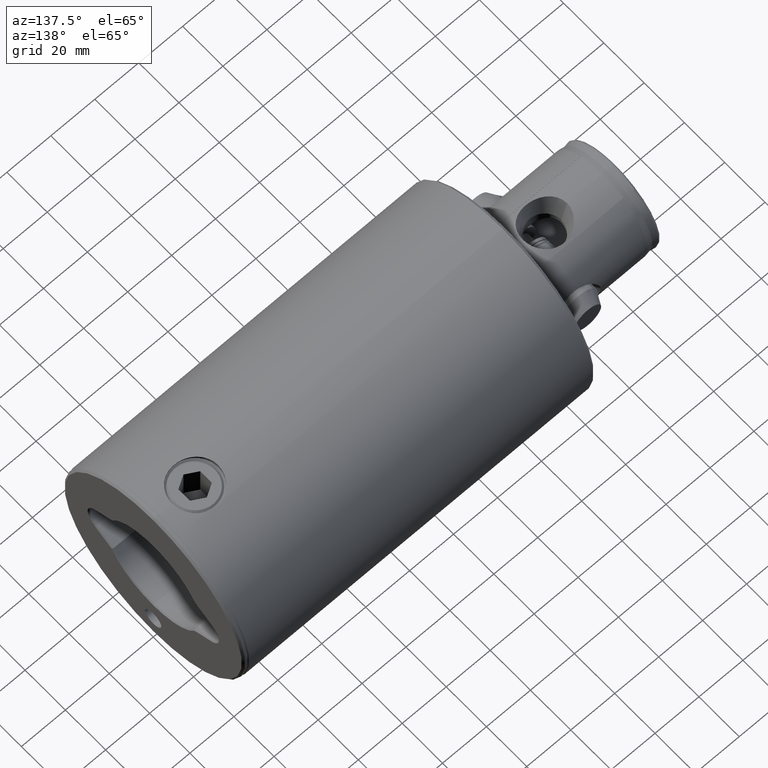
[diagram: clean part render]
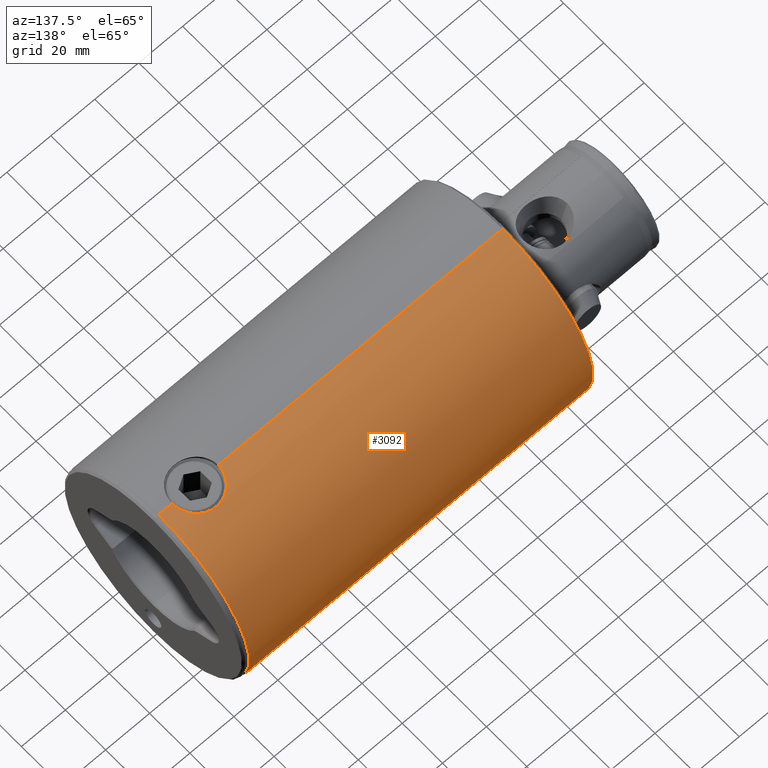
[diagram: same view with one face highlighted and labeled with its STEP entity id]
A machine part, auxiliary view. The second image highlights one B-rep face of the part: STEP entity #3092.
In plain terms, the highlighted cylindrical surface (partial cylindrical patch) has radius 45 mm, axis along (1, 0, -0).
Its self-contained STEP definition (entity closure, byte-faithful):
#2 = CARTESIAN_POINT ( 'NONE',  ( 43.91394426479704500, 9.827713463506007900, 22.76286813767233100 ) ) ;
#20 = CARTESIAN_POINT ( 'NONE',  ( 43.75788816996539800, 10.49986775740953100, 19.40037624690243600 ) ) ;
#36 = CARTESIAN_POINT ( 'NONE',  ( 45.00000000000000700, 0.6864697607511360800, 29.55000000000001500 ) ) ;
#46 = AXIS2_PLACEMENT_3D ( 'NONE', #2944, #1006, #164 ) ;
#72 = CARTESIAN_POINT ( 'NONE',  ( 43.76209520710541100, 10.48237850360732500, 19.74893602617114400 ) ) ;
#75 = CARTESIAN_POINT ( 'NONE',  ( 45.00000000000000700, 5.510915833727564200E-015, 29.55000000000000400 ) ) ;
#100 = CYLINDRICAL_SURFACE ( 'NONE', #2645, 45.00000000000000700 ) ;
#155 = CARTESIAN_POINT ( 'NONE',  ( 44.22206416487900800, 8.334142287527235700, 12.65393917782485300 ) ) ;
#164 = DIRECTION ( 'NONE',  ( 1.000000000000000000, 0.0000000000000000000, 0.0000000000000000000 ) ) ;
#387 = VECTOR ( 'NONE', #1586, 1000.000000000000000 ) ;
#388 = CARTESIAN_POINT ( 'NONE',  ( 43.75779351695738500, 10.50026221579536300, 18.36120456631399400 ) ) ;
#448 = CARTESIAN_POINT ( 'NONE',  ( 44.54483236646043300, 6.410048884440147500, 27.39458991627774500 ) ) ;
#477 = CARTESIAN_POINT ( 'NONE',  ( 44.93733894308707000, 2.397991502151261700, 8.821668051631347000 ) ) ;
#504 = CARTESIAN_POINT ( 'NONE',  ( 44.69405231421861700, 5.270267209355875300, 9.942310177902779600 ) ) ;
#538 = DIRECTION ( 'NONE',  ( 0.0000000000000000000, 0.0000000000000000000, 1.000000000000000000 ) ) ;
#598 = VECTOR ( 'NONE', #3401, 1000.000000000000000 ) ;
#625 = VERTEX_POINT ( 'NONE', #4170 ) ;
#739 = CARTESIAN_POINT ( 'NONE',  ( 45.00000000000000700, 5.510910596163090300E-015, 158.9999999999999700 ) ) ;
#834 = CARTESIAN_POINT ( 'NONE',  ( 44.00038987687833000, 9.436000484490263000, 14.39357493192308000 ) ) ;
#846 = CARTESIAN_POINT ( 'NONE',  ( 44.87652579329049700, 3.391213777154896000, 29.01082978461477800 ) ) ;
#874 = ORIENTED_EDGE ( 'NONE', *, *, #4274, .F. ) ;
#884 = ORIENTED_EDGE ( 'NONE', *, *, #3354, .T. ) ;
#1006 = DIRECTION ( 'NONE',  ( -0.0000000000000000000, -0.0000000000000000000, -1.000000000000000000 ) ) ;
#1008 = VERTEX_POINT ( 'NONE', #739 ) ;
#1011 = ORIENTED_EDGE ( 'NONE', *, *, #3515, .T. ) ;
#1234 = CARTESIAN_POINT ( 'NONE',  ( 44.18248970986382300, 8.540815387322641800, 12.93258212162305700 ) ) ;
#1243 = CARTESIAN_POINT ( 'NONE',  ( 45.00000000000000700, 7.795060392683076900E-017, 8.550000000000000700 ) ) ;
#1302 = CARTESIAN_POINT ( 'NONE',  ( 45.00000000000000700, 7.795060392683076900E-017, 8.550000000000000700 ) ) ;
#1333 = DIRECTION ( 'NONE',  ( 1.000000000000000000, 0.0000000000000000000, 0.0000000000000000000 ) ) ;
#1586 = DIRECTION ( 'NONE',  ( 0.0000000000000000000, 0.0000000000000000000, -1.000000000000000000 ) ) ;
#1695 = CARTESIAN_POINT ( 'NONE',  ( 44.58148021166492500, 6.129855570726013200, 10.51807153860128400 ) ) ;
#1736 = EDGE_CURVE ( 'NONE', #2994, #2466, #5029, .T. ) ;
#1962 = CARTESIAN_POINT ( 'NONE',  ( 44.92208166951087400, 2.733493503742514100, 29.21173686438134400 ) ) ;
#1991 = EDGE_CURVE ( 'NONE', #4345, #2994, #3694, .T. ) ;
#1998 = EDGE_CURVE ( 'NONE', #2466, #625, #2506, .T. ) ;
#2003 = CARTESIAN_POINT ( 'NONE',  ( 44.69294348479954900, 5.256820136470352600, 28.14584864134014100 ) ) ;
#2079 = CARTESIAN_POINT ( 'NONE',  ( 44.84707269738913700, 3.720297532670595600, 9.225214404049332000 ) ) ;
#2117 = DIRECTION ( 'NONE',  ( -1.000000000000000000, 0.0000000000000000000, 0.0000000000000000000 ) ) ;
#2349 = CARTESIAN_POINT ( 'NONE',  ( 44.07067217751229300, 9.106351163438748800, 24.32166749299032600 ) ) ;
#2368 = CARTESIAN_POINT ( 'NONE',  ( 43.80263085032628800, 10.31228824036765900, 21.11350728288801500 ) ) ;
#2384 = CARTESIAN_POINT ( 'NONE',  ( 44.00174348046481800, 9.429760438594783500, 23.71979496175057600 ) ) ;
#2421 = CARTESIAN_POINT ( 'NONE',  ( 43.84159599498132600, 10.14519591834770700, 21.77821211471541900 ) ) ;
#2426 = CIRCLE ( 'NONE', #46, 45.00000000000000700 ) ;
#2433 = EDGE_LOOP ( 'NONE', ( #1011, #884, #3706, #3202, #5002, #874 ) ) ;
#2466 = VERTEX_POINT ( 'NONE', #3913 ) ;
#2471 = CARTESIAN_POINT ( 'NONE',  ( 44.54232222962733800, 6.407256326827086600, 10.72448617732326800 ) ) ;
#2487 = CARTESIAN_POINT ( 'NONE',  ( 44.42284163368040600, 7.188238761679238000, 11.38870877015316700 ) ) ;
#2506 = CIRCLE ( 'NONE', #2675, 45.00000000000000700 ) ;
#2612 = LINE ( 'NONE', #3121, #387 ) ;
#2645 = AXIS2_PLACEMENT_3D ( 'NONE', #3636, #4490, #2117 ) ;
#2675 = AXIS2_PLACEMENT_3D ( 'NONE', #2901, #538, #1333 ) ;
#2763 = CARTESIAN_POINT ( 'NONE',  ( 43.77842080064322500, 10.41398618255542300, 20.43479689886765600 ) ) ;
#2795 = CARTESIAN_POINT ( 'NONE',  ( 43.83710911508600100, 10.16497728431017200, 16.33061316330709200 ) ) ;
#2811 = CARTESIAN_POINT ( 'NONE',  ( 44.65679335878176900, 5.554593704791408900, 27.96707438948621800 ) ) ;
#2865 = CARTESIAN_POINT ( 'NONE',  ( 44.91798760995553900, 2.735739779786160700, 8.906760931079622500 ) ) ;
#2901 = CARTESIAN_POINT ( 'NONE',  ( 0.0000000000000000000, 0.0000000000000000000, 2.364559852518651500 ) ) ;
#2917 = CARTESIAN_POINT ( 'NONE',  ( 44.46309014744697000, 6.935778095183171600, 11.15936654864615100 ) ) ;
#2944 = CARTESIAN_POINT ( 'NONE',  ( 0.0000000000000000000, 0.0000000000000000000, 158.9999999999999700 ) ) ;
#2994 = VERTEX_POINT ( 'NONE', #1243 ) ;
#3092 = ADVANCED_FACE ( 'NONE', ( #5080 ), #100, .T. ) ;
#3121 = CARTESIAN_POINT ( 'NONE',  ( -45.00000000000000700, 0.0000000000000000000, 160.0000000000000000 ) ) ;
#3151 = DIRECTION ( 'NONE',  ( 0.0000000000000000000, 0.0000000000000000000, -1.000000000000000000 ) ) ;
#3154 = CARTESIAN_POINT ( 'NONE',  ( 43.88439280352868400, 9.961550217019270900, 15.66061704262870100 ) ) ;
#3188 = CARTESIAN_POINT ( 'NONE',  ( 44.30245885158824800, 7.895665179852868800, 25.98015861381338000 ) ) ;
#3202 = ORIENTED_EDGE ( 'NONE', *, *, #1736, .T. ) ;
#3203 = CARTESIAN_POINT ( 'NONE',  ( 44.76020507880757300, 4.649451213398617000, 28.47078679663198700 ) ) ;
#3353 = CARTESIAN_POINT ( 'NONE',  ( -45.00000000000000700, 0.0000000000000000000, 158.9999999999999700 ) ) ;
#3354 = EDGE_CURVE ( 'NONE', #1008, #4345, #4512, .T. ) ;
#3401 = DIRECTION ( 'NONE',  ( 0.0000000000000000000, 0.0000000000000000000, -1.000000000000000000 ) ) ;
#3515 = EDGE_CURVE ( 'NONE', #4065, #1008, #2426, .T. ) ;
#3565 = CARTESIAN_POINT ( 'NONE',  ( 44.06912577593937600, 9.113937190623511600, 13.79077336470258300 ) ) ;
#3578 = CARTESIAN_POINT ( 'NONE',  ( 44.22231298458226700, 8.332852046127877400, 25.44782805507426500 ) ) ;
#3630 = CARTESIAN_POINT ( 'NONE',  ( 44.76175331873778200, 4.667720306366240900, 9.619703605213928200 ) ) ;
#3636 = CARTESIAN_POINT ( 'NONE',  ( 0.0000000000000000000, 0.0000000000000000000, 160.0000000000000000 ) ) ;
#3660 = CARTESIAN_POINT ( 'NONE',  ( 44.30182512190869900, 7.899188410162469900, 12.12393732554574700 ) ) ;
#3694 = B_SPLINE_CURVE_WITH_KNOTS ( 'NONE', 3,
 ( #4331, #36, #4346, #1962, #846, #3939, #3203, #2003, #2811, #448, #4316, #4773, #3188, #3578, #4701, #2349, #2384, #2, #3969, #2421, #2368, #2763, #72, #20, #388, #4742, #2795, #3154, #834, #3565, #1234, #155, #3660, #4435, #2487, #2917, #2471, #1695, #504, #3630, #2079, #4417, #2865, #477, #4864, #4790, #1302 ),
 .UNSPECIFIED., .F., .F.,
 ( 4, 2, 2, 2, 2, 2, 2, 2, 2, 2, 1, 2, 2, 2, 2, 2, 2, 2, 2, 2, 2, 2, 2, 4 ),
 ( 0.03294164099041466800, 0.03499994499056804200, 0.03705824899072142400, 0.03808740099079811100, 0.03911655299087480500, 0.04117485699102818600, 0.04220400899110488000, 0.04323316099118157400, 0.04529146499133495500, 0.04632061699141164900, 0.04734976899148833600, 0.04837892099156502300, 0.04940807299164171100, 0.05146637699179509900, 0.05352468099194848700, 0.05558298499210187500, 0.05661213699217856900, 0.05764128899225526300, 0.05867044099233195700, 0.05969959299240865100, 0.06175789699256203200, 0.06278704899263871900, 0.06381620099271541300, 0.06587450499286880100 ),
 .UNSPECIFIED. ) ;
#3706 = ORIENTED_EDGE ( 'NONE', *, *, #1991, .T. ) ;
#3844 = VECTOR ( 'NONE', #3151, 1000.000000000000000 ) ;
#3913 = CARTESIAN_POINT ( 'NONE',  ( 45.00000000000000700, 5.510910596163090300E-015, 2.364559852518651500 ) ) ;
#3939 = CARTESIAN_POINT ( 'NONE',  ( 44.79139804778672800, 4.339514427247085100, 28.61743067682348100 ) ) ;
#3969 = CARTESIAN_POINT ( 'NONE',  ( 43.88742970598495700, 9.945051704795229600, 22.43586593849911300 ) ) ;
#4065 = VERTEX_POINT ( 'NONE', #3353 ) ;
#4170 = CARTESIAN_POINT ( 'NONE',  ( -45.00000000000000700, 0.0000000000000000000, 2.364559852518651500 ) ) ;
#4274 = EDGE_CURVE ( 'NONE', #4065, #625, #2612, .T. ) ;
#4316 = CARTESIAN_POINT ( 'NONE',  ( 44.46481583660951700, 6.936941969101474600, 26.96184625323587300 ) ) ;
#4331 = CARTESIAN_POINT ( 'NONE',  ( 45.00000000000000700, 5.510915833727564200E-015, 29.55000000000000400 ) ) ;
#4343 = CARTESIAN_POINT ( 'NONE',  ( 45.00000000000000700, 5.510910596163090300E-015, 160.0000000000000000 ) ) ;
#4345 = VERTEX_POINT ( 'NONE', #75 ) ;
#4346 = CARTESIAN_POINT ( 'NONE',  ( 44.98429891438145500, 1.370496055736218000, 29.48334190933761800 ) ) ;
#4417 = CARTESIAN_POINT ( 'NONE',  ( 44.87281038722601100, 3.397171032327722900, 9.108732478748473600 ) ) ;
#4435 = CARTESIAN_POINT ( 'NONE',  ( 44.34221010318327000, 7.669943837545890400, 11.87099440504970500 ) ) ;
#4484 = CARTESIAN_POINT ( 'NONE',  ( 45.00000000000000700, 5.510910596163090300E-015, 160.0000000000000000 ) ) ;
#4490 = DIRECTION ( 'NONE',  ( 0.0000000000000000000, 0.0000000000000000000, -1.000000000000000000 ) ) ;
#4512 = LINE ( 'NONE', #4484, #598 ) ;
#4701 = CARTESIAN_POINT ( 'NONE',  ( 44.18324970457916100, 8.536854805208456300, 25.17279653850408700 ) ) ;
#4742 = CARTESIAN_POINT ( 'NONE',  ( 43.77418446620867300, 10.43262541630029400, 17.67808350061472600 ) ) ;
#4773 = CARTESIAN_POINT ( 'NONE',  ( 44.34337393072754500, 7.663252655122574800, 26.23621440663565700 ) ) ;
#4790 = CARTESIAN_POINT ( 'NONE',  ( 45.00000000000001400, 0.6961592158363776300, 8.549999999999998900 ) ) ;
#4864 = CARTESIAN_POINT ( 'NONE',  ( 44.98385877312323800, 1.382616360679093300, 8.618560849009545800 ) ) ;
#5002 = ORIENTED_EDGE ( 'NONE', *, *, #1998, .T. ) ;
#5029 = LINE ( 'NONE', #4343, #3844 ) ;
#5080 = FACE_OUTER_BOUND ( 'NONE', #2433, .T. ) ;